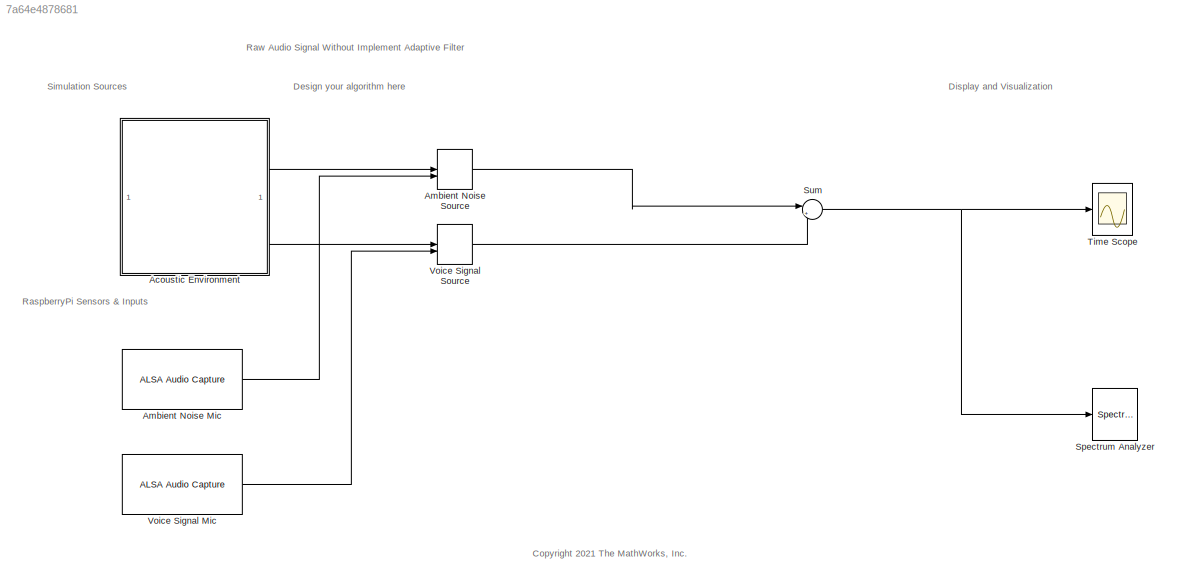
MODEL slx_7a64e4878681
KIND model
CONFIG AbsTol = auto
CONFIG EnableMultiTasking = on
CONFIG FixedStep = auto
CONFIG MaxStep = auto
CONFIG MinStep = auto
CONFIG RelTol = 1e-3
CONFIG SampleTimeConstraint = Unconstrained
CONFIG SolverName = ode45
CONFIG StartTime = 0.0
CONFIG StopTime = 10.0
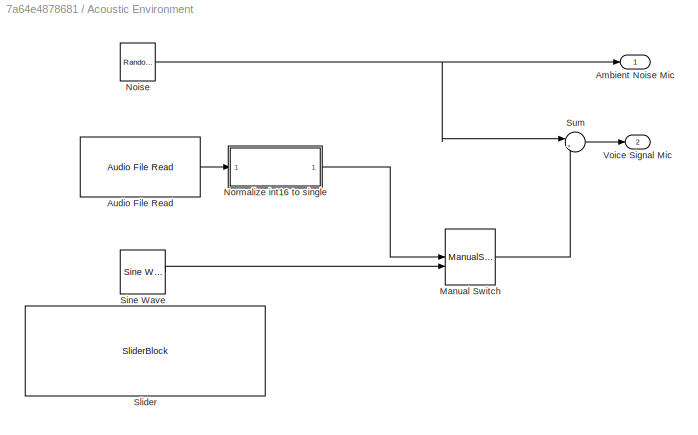
BLOCK [SubSystem] Acoustic Environment
BLOCK [Outport] Acoustic Environment/Ambient Noise Mic
  NameLocation = top
BLOCK [Reference] Acoustic Environment/Audio File Read  REF=raspberrypiAVlib/Audio File Read
  SourceBlock = raspberrypiAVlib/Audio File Read
  SourceType = codertarget.raspi.internal.RaspiAudioFileRead
BLOCK [ManualSwitch] Acoustic Environment/Manual Switch
  CurrentSetting = 0
BLOCK [Reference] Acoustic Environment/Noise  REF=dspsrcs4/Random
Source
  NameLocation = top
  SourceBlock = dspsrcs4/Random\nSource
  SourceType = Random Source
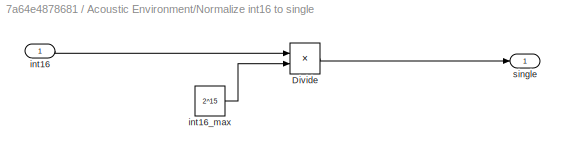
BLOCK [SubSystem] Acoustic Environment/Normalize int16 to single
BLOCK [Product] Acoustic Environment/Normalize int16 to single/Divide
  Inputs = */
  OutDataTypeStr = single
BLOCK [Inport] Acoustic Environment/Normalize int16 to single/int16
BLOCK [Constant] Acoustic Environment/Normalize int16 to single/int16_max
  OutDataTypeStr = single
  SampleTime = -1
  Value = 2^15
BLOCK [Outport] Acoustic Environment/Normalize int16 to single/single
BLOCK [Reference] Acoustic Environment/Sine Wave  REF=dspsrcs4/Sine Wave
  SourceBlock = dspsrcs4/Sine Wave
  SourceType = Sine Wave
BLOCK [SliderBlock] Acoustic Environment/Slider
  LabelPosition = Bottom
  ScaleMax = 1000
  ScaleMin = 500
  TickInterval = 100
BLOCK [Sum] Acoustic Environment/Sum
  InputSameDT = on
  Inputs = |++
  NameLocation = top
  OutDataTypeStr = Inherit: Same as first input
  SaturateOnIntegerOverflow = on
BLOCK [Outport] Acoustic Environment/Voice Signal Mic
  Port = 2
BLOCK [Reference] Ambient Noise Mic  REF=raspberrypiAVlib/ALSA Audio Capture
  SourceBlock = raspberrypiAVlib/ALSA Audio Capture
  SourceType = codertarget.raspi.internal.RaspiALSAAudioCapture
BLOCK [ManualSwitch] Ambient Noise Source
  NameLocation = top
BLOCK [SpectrumAnalyzer] Spectrum Analyzer
  AveragingMethod = Exponential
  GraphicalSettings = {"GraphicalSettings":{"Style":{"BackgroundColor":[0.12941176470588237,0.12941176470588237,0.12941176470588237],"AxesColor":[0,0,0],"LabelsColor":[0.6862745098039216,0.6862745098039216,0.6862745098039216],"PreserveColors":false,"Visible":[true],"LineStyle":["-"],"LineColor":[[1,1,0.06666666666666667]],"LineWidth":[0.5],"Marker":["none"],"FontSize":"small"},"Cursors":{"Enabled":false,"XLocation":[11...<+907ch>
  OpenAtSimulationStart = off
  PlotAsTwoSidedSpectrum = off
  SampleRate = 44.1e3
  SampleRateSource = Property
  ScopeFrameLocation = window
  ScopeSpecificationString = spbscopes.SpectrumAnalyzerBlockCfg('CurrentConfiguration', extmgr.ConfigurationSet(extmgr.Configuration('Core','General UI',true),extmgr.Configuration('Core','Source UI',true),extmgr.Configuration('Sources','WiredSimulink',true),extmgr.Configuration('Sources','File',false),extmgr.Configuration('Sources','Workspace',false),extmgr.Configuration('Sources','Streaming',false),extmgr.Configuration('Sour...<+4489ch>
  WasSavedAsWebScope = on
  WindowPosition = [400.000000,219.000000,674.000000,506.000000,]
  YLimits = [-1.42154217,29.00434644]
BLOCK [Sum] Sum
  InputSameDT = on
  Inputs = |++
  NameLocation = top
  OutDataTypeStr = Inherit: Same as first input
  SaturateOnIntegerOverflow = on
BLOCK [Scope] Time Scope
  DefaultConfigurationName = spbscopes.TimeScopeBlockCfg
  Floating = off
  NumInputPorts = 1
  ScopeSpecificationString = spbscopes.TimeScopeBlockCfg('CurrentConfiguration', extmgr.ConfigurationSet(extmgr.Configuration('Core','General UI',true,'FigureColor',[0.156862745098039 0.156862745098039 0.156862745098039]),extmgr.Configuration('Core','Source UI',true),extmgr.Configuration('Sources','WiredSimulink',true),extmgr.Configuration('Visuals','Time Domain',true,'DisplayPropertyDefaults',struct('MinYLimReal','-9.72341',...<+1540ch>
  UserDataPersistent = on
BLOCK [Reference] Voice Signal Mic  REF=raspberrypiAVlib/ALSA Audio Capture
  SourceBlock = raspberrypiAVlib/ALSA Audio Capture
  SourceType = codertarget.raspi.internal.RaspiALSAAudioCapture
BLOCK [ManualSwitch] Voice Signal Source
ANNOTATION (root): <copyright redacted>
ANNOTATION (root): Design your algorithm here
ANNOTATION (root): Display and Visualization
ANNOTATION (root): RaspberryPi Sensors & Inputs
ANNOTATION (root): Raw Audio Signal Without Implement Adaptive Filter
ANNOTATION (root): Simulation Sources
LINE Acoustic Environment/Audio File Read:1 -> Acoustic Environment/Normalize int16 to single:1
LINE Acoustic Environment/Manual Switch:1 -> Acoustic Environment/Sum:2
NET Acoustic Environment/Noise:1 -> Acoustic Environment/Ambient Noise Mic:1, Acoustic Environment/Sum:1
LINE Acoustic Environment/Normalize int16 to single/Divide:1 -> Acoustic Environment/Normalize int16 to single/single:1
LINE Acoustic Environment/Normalize int16 to single/int16:1 -> Acoustic Environment/Normalize int16 to single/Divide:1
LINE Acoustic Environment/Normalize int16 to single/int16_max:1 -> Acoustic Environment/Normalize int16 to single/Divide:2
LINE Acoustic Environment/Normalize int16 to single:1 -> Acoustic Environment/Manual Switch:1
LINE Acoustic Environment/Sine Wave:1 -> Acoustic Environment/Manual Switch:2
LINE Acoustic Environment/Sum:1 -> Acoustic Environment/Voice Signal Mic:1
LINE Acoustic Environment:1 -> Ambient Noise Source:1
LINE Acoustic Environment:2 -> Voice Signal Source:1
LINE Ambient Noise Mic:1 -> Ambient Noise Source:2
LINE Ambient Noise Source:1 -> Sum:1
NET Sum:1 -> Spectrum Analyzer:1, Time Scope:1
LINE Voice Signal Mic:1 -> Voice Signal Source:2
LINE Voice Signal Source:1 -> Sum:2
note: NET lines group one-source signal fan-out (src -> all destinations, sorted); 1:1 wires keep LINE
